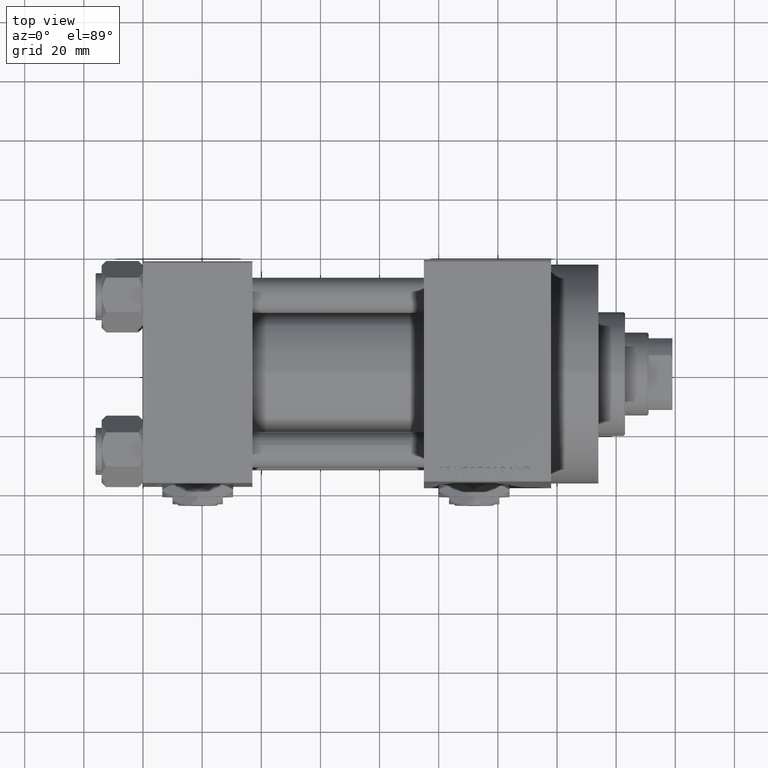
[diagram: clean part render]
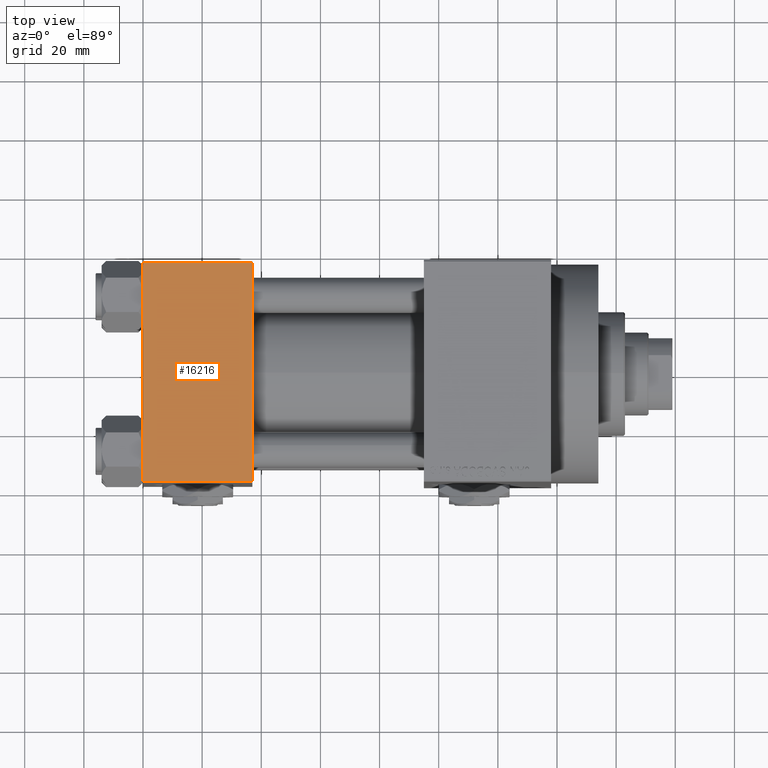
[diagram: same view with one face highlighted and labeled with its STEP entity id]
A machine part, top view. The second image highlights one B-rep face of the part: STEP entity #16216.
In plain terms, the highlighted planar face has unit normal (0, 0, -1).
Its self-contained STEP definition (entity closure, byte-faithful):
#53 = CARTESIAN_POINT ( 'NONE',  ( 37.00000000000000000, 37.49999999999999289, 37.50000000000000000 ) ) ;
#2818 = PLANE ( 'NONE',  #35218 ) ;
#6558 = DIRECTION ( 'NONE',  ( 0.000000000000000000, 9.251858538542971581E-17, -1.000000000000000000 ) ) ;
#8112 = EDGE_LOOP ( 'NONE', ( #40071, #38787, #30399, #46475 ) ) ;
#8988 = DIRECTION ( 'NONE',  ( 0.000000000000000000, -1.000000000000000000, -9.251858538542971581E-17 ) ) ;
#11117 = CARTESIAN_POINT ( 'NONE',  ( 0.000000000000000000, 36.99999999999999289, 37.50000000000000000 ) ) ;
#12411 = EDGE_CURVE ( 'NONE', #12905, #12781, #39104, .T. ) ;
#12781 = VERTEX_POINT ( 'NONE', #14857 ) ;
#12905 = VERTEX_POINT ( 'NONE', #11117 ) ;
#14857 = CARTESIAN_POINT ( 'NONE',  ( 0.000000000000000000, -37.00000000000000711, 37.49999999999999289 ) ) ;
#16216 = ADVANCED_FACE ( 'NONE', ( #48637 ), #2818, .F. ) ;
#16702 = CARTESIAN_POINT ( 'NONE',  ( 37.00000000000000000, 37.49999999999999289, 37.50000000000000000 ) ) ;
#16854 = VERTEX_POINT ( 'NONE', #33090 ) ;
#17178 = DIRECTION ( 'NONE',  ( 0.000000000000000000, -1.000000000000000000, -9.251858538542971581E-17 ) ) ;
#19443 = VECTOR ( 'NONE', #17178, 1000.000000000000000 ) ;
#19955 = LINE ( 'NONE', #16702, #22677 ) ;
#22677 = VECTOR ( 'NONE', #8988, 1000.000000000000000 ) ;
#24008 = EDGE_CURVE ( 'NONE', #40306, #16854, #19955, .T. ) ;
#24199 = LINE ( 'NONE', #48809, #28469 ) ;
#26478 = DIRECTION ( 'NONE',  ( 0.000000000000000000, 1.000000000000000000, 9.251858538542971581E-17 ) ) ;
#27693 = VECTOR ( 'NONE', #36671, 1000.000000000000000 ) ;
#28469 = VECTOR ( 'NONE', #40357, 1000.000000000000000 ) ;
#29466 = CARTESIAN_POINT ( 'NONE',  ( 37.00000000000000000, -37.00000000000000711, 37.49999999999999289 ) ) ;
#30399 = ORIENTED_EDGE ( 'NONE', *, *, #24008, .F. ) ;
#30504 = CARTESIAN_POINT ( 'NONE',  ( 37.00000000000000000, 36.99999999999999289, 37.50000000000000000 ) ) ;
#30850 = EDGE_CURVE ( 'NONE', #12781, #16854, #40660, .T. ) ;
#33090 = CARTESIAN_POINT ( 'NONE',  ( 37.00000000000000000, -37.00000000000000711, 37.49999999999999289 ) ) ;
#34952 = EDGE_CURVE ( 'NONE', #40306, #12905, #24199, .T. ) ;
#35218 = AXIS2_PLACEMENT_3D ( 'NONE', #53, #6558, #26478 ) ;
#36671 = DIRECTION ( 'NONE',  ( 1.000000000000000000, 0.000000000000000000, 0.000000000000000000 ) ) ;
#38787 = ORIENTED_EDGE ( 'NONE', *, *, #30850, .T. ) ;
#39104 = LINE ( 'NONE', #40078, #19443 ) ;
#40071 = ORIENTED_EDGE ( 'NONE', *, *, #12411, .T. ) ;
#40078 = CARTESIAN_POINT ( 'NONE',  ( 0.000000000000000000, 37.49999999999999289, 37.50000000000000000 ) ) ;
#40306 = VERTEX_POINT ( 'NONE', #30504 ) ;
#40357 = DIRECTION ( 'NONE',  ( -1.000000000000000000, 0.000000000000000000, 0.000000000000000000 ) ) ;
#40660 = LINE ( 'NONE', #29466, #27693 ) ;
#46475 = ORIENTED_EDGE ( 'NONE', *, *, #34952, .T. ) ;
#48637 = FACE_OUTER_BOUND ( 'NONE', #8112, .T. ) ;
#48809 = CARTESIAN_POINT ( 'NONE',  ( 0.000000000000000000, 36.99999999999999289, 37.50000000000000000 ) ) ;